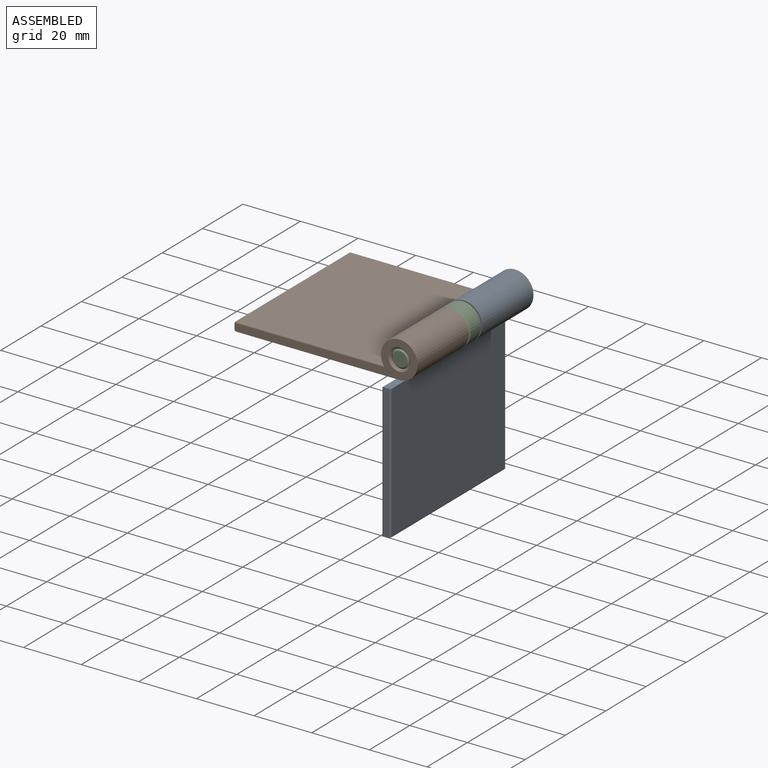
[diagram: assembled view]
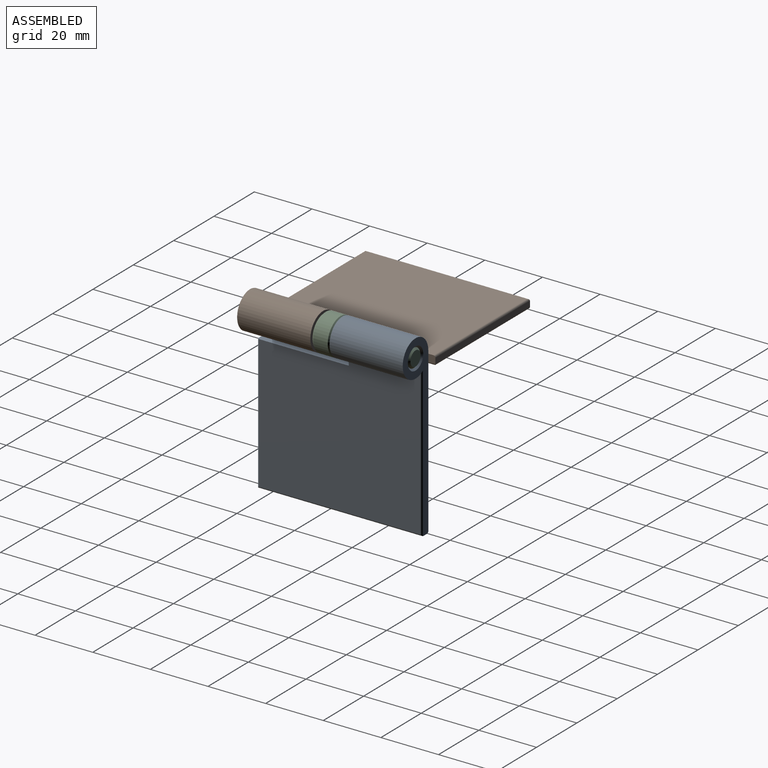
[diagram: assembled view, second angle]
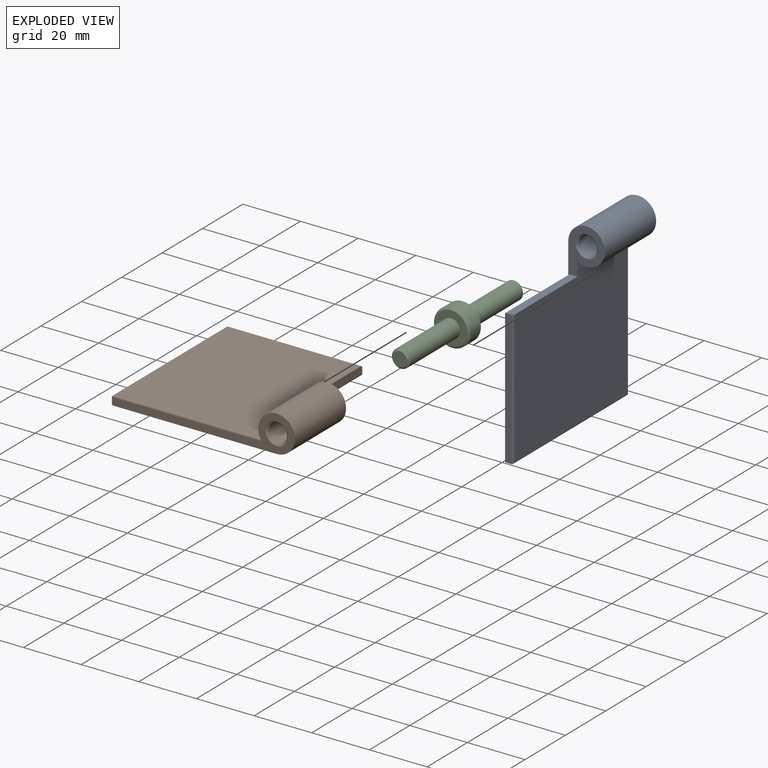
[diagram: exploded view]
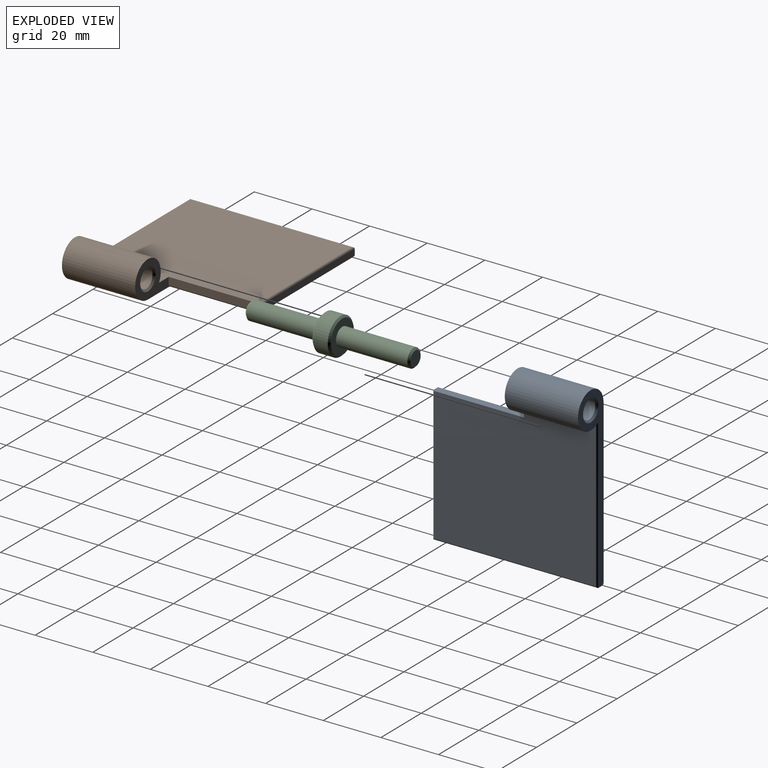
[diagram: exploded view, second angle]
ASSEMBLY  parts=3 mates=2
PART A: 17 faces, bbox 63.5x57.2x12.7 mm
  f0: plane 55.88x51.02mm, normal (0,0,1), area 2702.2mm2, adj f1,f4,f6,f12,f13,f14
  f1: cylinder r=6.35mm len=25.4mm, axis (0,1,0), area 844.6mm2, adj f0,f3,f4,f5,f13
  f2: cylinder r=3.17mm len=24.13mm, axis (0,1,0), area 481.4mm2, adj f15,f16
  f3: plane 56.52x56.52mm, normal (0,0,-1), area 2854.5mm2, adj f1,f4,f5,f9,f10,f11
  f4: plane 17.26x12.7mm, normal (0,-1,0), area 101.4mm2, adj f0,f1,f3,f6,f11,f16
  f5: plane 63.5x12.7mm, normal (0,1,0), area 217.1mm2, adj f1,f3,f7,f9,f13,f15
  f6: plane 31.75x2.54mm, normal (-1,0,0), area 80.6mm2, adj f0,f4,f8,f11,f12
  f7: plane 57.15x1.91mm, normal (1,0,0), area 108.9mm2, adj f5,f8,f9,f14
  f8: plane 46.88x1.91mm, normal (0,-1,0), area 89.3mm2, adj f6,f7,f10,f12
  f9: cylinder r=0.64mm len=57.15mm, axis (0,-1,0), area 56.8mm2, adj f3,f5,f7,f10
  f10: cylinder r=0.64mm len=46.88mm, axis (-1,0,0), area 46.3mm2, adj f3,f8,f9,f11
  f11: cylinder r=0.64mm len=31.75mm, axis (0,1,0), area 31.4mm2, adj f3,f4,f6,f10
  f12: cylinder r=0.64mm len=46.88mm, axis (1,0,0), area 46.5mm2, adj f0,f6,f8,f14
  f13: cylinder r=0.64mm len=52.07mm, axis (-1,0,0), area 51.4mm2, adj f0,f1,f5,f14
  f14: cylinder r=0.64mm len=57.15mm, axis (0,-1,0), area 56.5mm2, adj f0,f7,f12,f13
  f15: cone r=3.81mm half-angle=45deg, axis (0,1,0), area 19.7mm2, adj f2,f5
  f16: cone r=3.17mm half-angle=45deg, axis (0,-1,0), area 19.7mm2, adj f2,f4
PART B: same geometry as A
PART C: 11 faces, bbox 12.7x57.2x12.7 mm
  f0: cylinder r=3.17mm len=24.77mm, axis (0,1,0), area 494mm2, adj f3,f10
  f1: plane 5.08x5.08mm, normal (0,-1,0), area 20.3mm2, adj f10
  f2: cylinder r=6.35mm len=12.7mm, axis (0,1,0), area 202.7mm2, adj f7,f8
  f3: plane 11.43x11.43mm, normal (0,-1,0), area 70.9mm2, adj f0,f8
  f4: plane 11.43x11.43mm, normal (0,1,0), area 70.9mm2, adj f6,f7
  f5: plane 5.08x5.08mm, normal (0,1,0), area 20.3mm2, adj f9
  f6: cylinder r=3.17mm len=24.77mm, axis (0,1,0), area 494mm2, adj f4,f9
  f7: cone r=6.35mm half-angle=45deg, axis (0,-1,0), area 34mm2, adj f2,f4
  f8: cone r=5.71mm half-angle=45deg, axis (0,1,0), area 34mm2, adj f2,f3
  f9: cone r=3.17mm half-angle=45deg, axis (0,-1,0), area 16.1mm2, adj f5,f6
  f10: cone r=2.54mm half-angle=45deg, axis (0,1,0), area 16.1mm2, adj f0,f1
PLACE A rot(axis=(0,1,0),90deg) t=(28.69,54.09,-51.93)mm
PLACE B rot(axis=(0,0,1),180deg) t=(28.69,-3.37,-51.93)mm
PLACE C t=(28.69,25.52,-51.93)mm fixed
MATE revolute B.f1 <-> C.f0  axis (0,1,0) through (28.69,-2.74,-51.93)mm
MATE revolute C.f0 <-> A.f1  axis (0,-1,0) through (28.69,53.46,-51.93)mm
